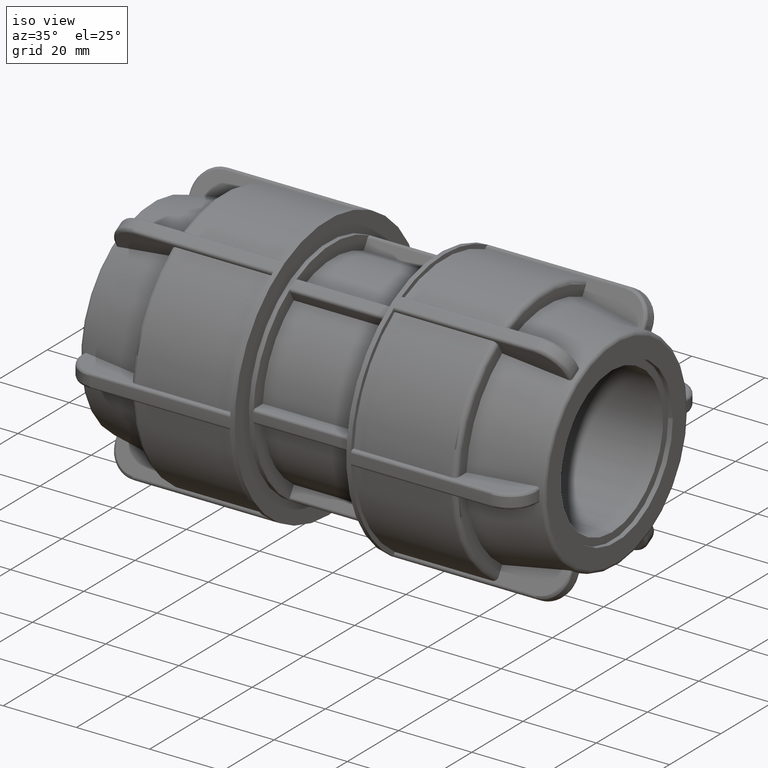
[diagram: clean part render]
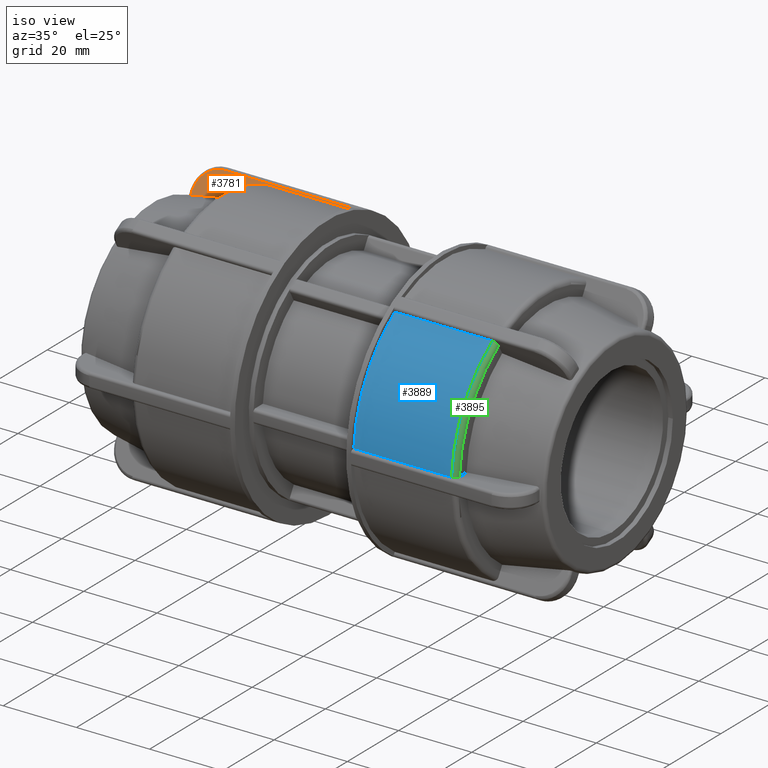
[diagram: same view with three faces highlighted in distinct colors, each labeled with its STEP entity id]
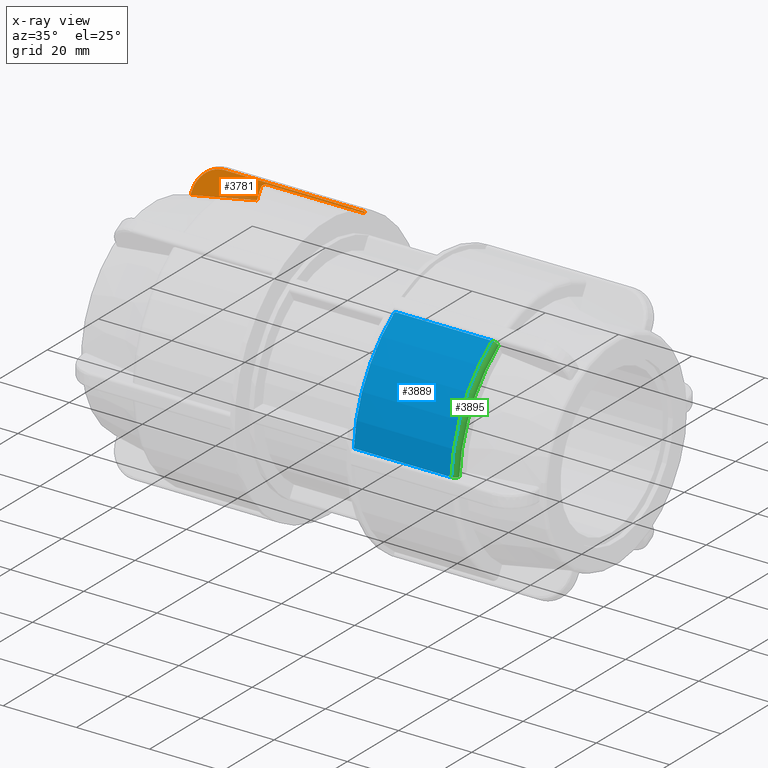
[diagram: x-ray of the same camera — body ghosted, the three highlighted faces saturated]
A machine part, iso view with three faces highlighted in distinct colors.
The next image is the same camera in x-ray (body ghosted, the three faces saturated) — at least one of them is partly hidden behind the body in this view.
Their STEP definitions:

[orange] entity #3781 — the highlighted planar face has unit normal (-0, 0.866, -0.5).
#48=(
BOUNDED_CURVE()
B_SPLINE_CURVE(2,(#6571,#6572,#6573),.UNSPECIFIED.,.F.,.F.)
B_SPLINE_CURVE_WITH_KNOTS((3,3),(0.,1.72756685067412),.UNSPECIFIED.)
CURVE()
GEOMETRIC_REPRESENTATION_ITEM()
RATIONAL_B_SPLINE_CURVE((1.,1.00133329924785,1.00011517547722))
REPRESENTATION_ITEM('')
);
#100=B_SPLINE_CURVE_WITH_KNOTS('',3,(#6542,#6543,#6544,#6545,#6546,#6547),
 .UNSPECIFIED.,.F.,.F.,(4,1,1,4),(0.,0.294967564577303,0.589935129154607,
1.03238647602056),.UNSPECIFIED.);
#102=B_SPLINE_CURVE_WITH_KNOTS('',3,(#6577,#6578,#6579,#6580,#6581,#6582,
#6583,#6584,#6585,#6586),.UNSPECIFIED.,.F.,.F.,(4,2,2,2,4),(0.,0.0470157208104112,
0.0940699030958911,0.14113297843627,0.188239151864905),.UNSPECIFIED.);
#247=PLANE('',#4111);
#395=FACE_OUTER_BOUND('',#637,.T.);
#637=EDGE_LOOP('',(#2876,#2877,#2878,#2879,#2880,#2881,#2882,#2883));
#905=LINE('',#6501,#1133);
#906=LINE('',#6563,#1134);
#908=LINE('',#6575,#1136);
#909=LINE('',#6588,#1137);
#910=LINE('',#6589,#1138);
#1133=VECTOR('',#4841,38.42);
#1134=VECTOR('',#4848,0.890342917536757);
#1136=VECTOR('',#4860,2.78117222986593);
#1137=VECTOR('',#4861,26.67);
#1138=VECTOR('',#4862,0.398981794479017);
#1660=VERTEX_POINT('',#6498);
#1661=VERTEX_POINT('',#6500);
#1663=VERTEX_POINT('',#6540);
#1665=VERTEX_POINT('',#6550);
#1666=VERTEX_POINT('',#6570);
#1667=VERTEX_POINT('',#6574);
#1668=VERTEX_POINT('',#6576);
#1669=VERTEX_POINT('',#6587);
#2114=EDGE_CURVE('',#1660,#1661,#905,.T.);
#2118=EDGE_CURVE('',#1663,#1660,#100,.T.);
#2120=EDGE_CURVE('',#1665,#1663,#906,.T.);
#2124=EDGE_CURVE('',#1666,#1665,#48,.T.);
#2125=EDGE_CURVE('',#1667,#1666,#908,.T.);
#2126=EDGE_CURVE('',#1668,#1667,#102,.T.);
#2127=EDGE_CURVE('',#1669,#1668,#909,.T.);
#2128=EDGE_CURVE('',#1661,#1669,#910,.T.);
#2876=ORIENTED_EDGE('',*,*,#2120,.F.);
#2877=ORIENTED_EDGE('',*,*,#2124,.F.);
#2878=ORIENTED_EDGE('',*,*,#2125,.F.);
#2879=ORIENTED_EDGE('',*,*,#2126,.F.);
#2880=ORIENTED_EDGE('',*,*,#2127,.F.);
#2881=ORIENTED_EDGE('',*,*,#2128,.F.);
#2882=ORIENTED_EDGE('',*,*,#2114,.F.);
#2883=ORIENTED_EDGE('',*,*,#2118,.F.);
#3781=ADVANCED_FACE('',(#395),#247,.F.);
#4111=AXIS2_PLACEMENT_3D('',#6569,#4858,#4859);
#4841=DIRECTION('',(1.,2.72792302586033E-16,1.77169144543045E-17));
#4848=DIRECTION('',(-1.74879981158523E-16,0.5,0.866025403784438));
#4858=DIRECTION('center_axis',(-2.27386606769204E-16,0.866025403784439,
-0.5));
#4859=DIRECTION('ref_axis',(1.77635683940025E-16,-0.5,-0.866025403784439));
#4860=DIRECTION('',(1.53080849893419E-16,-0.5,-0.866025403784438));
#4861=DIRECTION('',(-1.,-3.06161699786838E-16,0.));
#4862=DIRECTION('',(1.53080849893419E-16,-0.5,-0.866025403784438));
#6498=CARTESIAN_POINT('',(-54.93,16.1416729230923,31.9581976219547));
#6500=CARTESIAN_POINT('',(-16.51,16.1416729230923,31.9581976219547));
#6501=CARTESIAN_POINT('',(-15.875,16.1416729230923,31.9581976219547));
#6540=CARTESIAN_POINT('',(-61.5,12.8541335804059,26.2640124485403));
#6542=CARTESIAN_POINT('Ctrl Pts',(-61.5,12.8541335804059,26.2640124485403));
#6543=CARTESIAN_POINT('Ctrl Pts',(-61.5,13.3457461880347,27.1155104625949));
#6544=CARTESIAN_POINT('Ctrl Pts',(-61.0509256002354,14.3271913092124,28.8154232773151));
#6545=CARTESIAN_POINT('Ctrl Pts',(-58.8539227202472,15.7101240793371,31.210733098623));
#6546=CARTESIAN_POINT('Ctrl Pts',(-56.4048378228866,16.1416729230923,31.9581976219547));
#6547=CARTESIAN_POINT('Ctrl Pts',(-54.93,16.1416729230923,31.9581976219547));
#6550=CARTESIAN_POINT('',(-61.5,12.4089621216375,25.4929528638739));
#6563=CARTESIAN_POINT('',(-61.5,13.3573342211153,27.1355815246502));
#6569=CARTESIAN_POINT('Origin',(-15.24,16.490531336573,32.5624381187512));
#6570=CARTESIAN_POINT('',(-44.45,13.9155424476656,28.1024265342382));
#6571=CARTESIAN_POINT('Ctrl Pts',(-44.45,13.9155424476656,28.1024265342382));
#6572=CARTESIAN_POINT('Ctrl Pts',(-53.4061584660706,13.1243254531373,26.7319984999033));
#6573=CARTESIAN_POINT('Ctrl Pts',(-61.5000000000003,12.4089621216375,25.4929528638739));
#6574=CARTESIAN_POINT('',(-44.45,15.3061285625986,30.5109923376019));
#6575=CARTESIAN_POINT('',(-44.45,11.2991188873141,23.5706479935892));
#6576=CARTESIAN_POINT('',(-43.18,15.9421820258528,31.6126692522883));
#6577=CARTESIAN_POINT('Ctrl Pts',(-43.18,15.9421820258528,31.6126692522883));
#6578=CARTESIAN_POINT('Ctrl Pts',(-43.3367190693681,15.9421820258528,31.6126692522883));
#6579=CARTESIAN_POINT('Ctrl Pts',(-43.5211571746938,15.9238092650572,31.5808466971152));
#6580=CARTESIAN_POINT('Ctrl Pts',(-43.8107957448815,15.863739824966,31.4768033748949));
#6581=CARTESIAN_POINT('Ctrl Pts',(-43.9672083916521,15.8113933325832,31.38613659049));
#6582=CARTESIAN_POINT('Ctrl Pts',(-44.1888637765794,15.7003845952775,31.1938638173924));
#6583=CARTESIAN_POINT('Ctrl Pts',(-44.2933233619041,15.6220789058263,31.0582343847412));
#6584=CARTESIAN_POINT('Ctrl Pts',(-44.4133007276922,15.4770469527705,30.8070316733275));
#6585=CARTESIAN_POINT('Ctrl Pts',(-44.45,15.3846388516463,30.6469761471495));
#6586=CARTESIAN_POINT('Ctrl Pts',(-44.45,15.3061285625986,30.5109923376019));
#6587=CARTESIAN_POINT('',(-16.51,15.9421820258528,31.6126692522883));
#6588=CARTESIAN_POINT('',(-30.48,15.9421820258528,31.6126692522883));
#6589=CARTESIAN_POINT('',(-16.51,11.8048652645021,24.4466264146226));

[blue] entity #3889 — the highlighted cylindrical surface (partial cylindrical patch) has radius 35.405 mm, axis along (1, 0, 0).
#503=FACE_OUTER_BOUND('',#755,.T.);
#755=EDGE_LOOP('',(#3440,#3441,#3442,#3443));
#981=LINE('',#7607,#1209);
#999=LINE('',#7848,#1227);
#1209=VECTOR('',#5243,26.67);
#1227=VECTOR('',#5297,26.67);
#1449=CIRCLE('',#4296,35.405);
#1456=CIRCLE('',#4309,35.405);
#1795=VERTEX_POINT('',#7604);
#1796=VERTEX_POINT('',#7606);
#1825=VERTEX_POINT('',#7836);
#1826=VERTEX_POINT('',#7847);
#2329=EDGE_CURVE('',#1796,#1795,#981,.T.);
#2371=EDGE_CURVE('',#1826,#1825,#999,.T.);
#2388=EDGE_CURVE('',#1795,#1826,#1449,.T.);
#2397=EDGE_CURVE('',#1796,#1825,#1456,.T.);
#3440=ORIENTED_EDGE('',*,*,#2371,.T.);
#3441=ORIENTED_EDGE('',*,*,#2397,.F.);
#3442=ORIENTED_EDGE('',*,*,#2329,.T.);
#3443=ORIENTED_EDGE('',*,*,#2388,.T.);
#3681=CYLINDRICAL_SURFACE('',#4308,35.405);
#3889=ADVANCED_FACE('',(#503),#3681,.T.);
#4296=AXIS2_PLACEMENT_3D('',#7905,#5328,#5329);
#4308=AXIS2_PLACEMENT_3D('',#7922,#5354,#5355);
#4309=AXIS2_PLACEMENT_3D('',#7923,#5356,#5357);
#5243=DIRECTION('',(-1.,-3.06161699786838E-16,0.));
#5297=DIRECTION('',(1.,3.06161699786838E-16,0.));
#5328=DIRECTION('center_axis',(1.,3.06161699786838E-16,0.));
#5329=DIRECTION('ref_axis',(0.,0.,-1.));
#5354=DIRECTION('center_axis',(1.,3.06161699786838E-16,0.));
#5355=DIRECTION('ref_axis',(-3.49759962317046E-16,1.,0.));
#5356=DIRECTION('center_axis',(1.,3.06161699786838E-16,0.));
#5357=DIRECTION('ref_axis',(3.05738581841414E-16,-1.,1.83697019872103E-16));
#7604=CARTESIAN_POINT('',(16.51,-19.4062836409905,29.6126692522883));
#7606=CARTESIAN_POINT('',(43.18,-19.4062836409905,29.6126692522884));
#7607=CARTESIAN_POINT('',(30.48,-19.4062836409905,29.6126692522883));
#7836=CARTESIAN_POINT('',(43.18,-35.3484656668433,2.00000000000001));
#7847=CARTESIAN_POINT('',(16.51,-35.3484656668433,2.00000000000001));
#7848=CARTESIAN_POINT('',(30.48,-35.3484656668433,2.00000000000001));
#7905=CARTESIAN_POINT('Origin',(16.51,5.0547296634807E-15,0.));
#7922=CARTESIAN_POINT('Origin',(30.48,9.33180860950283E-15,0.));
#7923=CARTESIAN_POINT('Origin',(43.18,1.32200621967957E-14,0.));

[green] entity #3895 — the highlighted toroidal blend (fillet) surface has major radius 34.135 mm and minor (blend) radius 1.27 mm.
#37=TOROIDAL_SURFACE('',#4320,34.135,1.27);
#142=B_SPLINE_CURVE_WITH_KNOTS('',3,(#7609,#7610,#7611,#7612,#7613,#7614,
#7615,#7616,#7617,#7618),.UNSPECIFIED.,.F.,.F.,(4,2,2,2,4),(-0.188239151094503,
-0.141113232694733,-0.0940304570825018,-0.0469960190171783,0.),
 .UNSPECIFIED.);
#152=B_SPLINE_CURVE_WITH_KNOTS('',3,(#7837,#7838,#7839,#7840,#7841,#7842,
#7843,#7844,#7845,#7846),.UNSPECIFIED.,.F.,.F.,(4,2,2,2,4),(0.,0.0469960190171781,
0.0940304570825019,0.141113232694733,0.188239151094504),.UNSPECIFIED.);
#509=FACE_OUTER_BOUND('',#761,.T.);
#761=EDGE_LOOP('',(#3464,#3465,#3466,#3467));
#1456=CIRCLE('',#4309,35.405);
#1462=CIRCLE('',#4321,34.135);
#1796=VERTEX_POINT('',#7606);
#1797=VERTEX_POINT('',#7608);
#1824=VERTEX_POINT('',#7834);
#1825=VERTEX_POINT('',#7836);
#2330=EDGE_CURVE('',#1797,#1796,#142,.T.);
#2370=EDGE_CURVE('',#1825,#1824,#152,.T.);
#2397=EDGE_CURVE('',#1796,#1825,#1456,.T.);
#2405=EDGE_CURVE('',#1824,#1797,#1462,.T.);
#3464=ORIENTED_EDGE('',*,*,#2370,.T.);
#3465=ORIENTED_EDGE('',*,*,#2405,.T.);
#3466=ORIENTED_EDGE('',*,*,#2330,.T.);
#3467=ORIENTED_EDGE('',*,*,#2397,.T.);
#3895=ADVANCED_FACE('',(#509),#37,.T.);
#4309=AXIS2_PLACEMENT_3D('',#7923,#5356,#5357);
#4320=AXIS2_PLACEMENT_3D('',#7947,#5379,#5380);
#4321=AXIS2_PLACEMENT_3D('',#7948,#5381,#5382);
#5356=DIRECTION('center_axis',(1.,3.06161699786838E-16,0.));
#5357=DIRECTION('ref_axis',(3.05738581841414E-16,-1.,1.83697019872103E-16));
#5379=DIRECTION('center_axis',(1.,3.06161699786838E-16,0.));
#5380=DIRECTION('ref_axis',(0.,0.,-1.));
#5381=DIRECTION('center_axis',(-1.,-3.06161699786838E-16,0.));
#5382=DIRECTION('ref_axis',(3.06161699786838E-16,-1.,1.83697019872103E-16));
#7606=CARTESIAN_POINT('',(43.18,-19.4062836409905,29.6126692522884));
#7608=CARTESIAN_POINT('',(44.45,-18.7702301777363,28.5109923376019));
#7609=CARTESIAN_POINT('Ctrl Pts',(44.45,-18.7702301777363,28.5109923376019));
#7610=CARTESIAN_POINT('Ctrl Pts',(44.45,-18.8487733750693,28.6470331459715));
#7611=CARTESIAN_POINT('Ctrl Pts',(44.4132703253075,-18.9412187183232,28.8071531774104));
#7612=CARTESIAN_POINT('Ctrl Pts',(44.2931955099687,-19.0863016592796,29.0584442024585));
#7613=CARTESIAN_POINT('Ctrl Pts',(44.1886539862116,-19.1646273797681,29.194108329884));
#7614=CARTESIAN_POINT('Ctrl Pts',(43.9669264528178,-19.2755999864303,29.3863185228714));
#7615=CARTESIAN_POINT('Ctrl Pts',(43.8105538748911,-19.3279054132485,29.4769141796319));
#7616=CARTESIAN_POINT('Ctrl Pts',(43.5210172064283,-19.3879260912717,29.5808730434729));
#7617=CARTESIAN_POINT('Ctrl Pts',(43.3366533967239,-19.4062836409905,29.6126692522883));
#7618=CARTESIAN_POINT('Ctrl Pts',(43.18,-19.4062836409905,29.6126692522883));
#7834=CARTESIAN_POINT('',(44.45,-34.0763587403349,2.00000000000001));
#7836=CARTESIAN_POINT('',(43.18,-35.3484656668433,2.00000000000001));
#7837=CARTESIAN_POINT('Ctrl Pts',(43.18,-35.3484656668433,2.00000000000001));
#7838=CARTESIAN_POINT('Ctrl Pts',(43.3366533967239,-35.3484656668433,2.00000000000001));
#7839=CARTESIAN_POINT('Ctrl Pts',(43.5210172064283,-35.3117505674057,2.00000000000001));
#7840=CARTESIAN_POINT('Ctrl Pts',(43.8105538748911,-35.1917092113592,2.00000000000001));
#7841=CARTESIAN_POINT('Ctrl Pts',(43.9669264528178,-35.087098357723,2.00000000000001));
#7842=CARTESIAN_POINT('Ctrl Pts',(44.1886539862116,-34.8651531443985,2.00000000000001));
#7843=CARTESIAN_POINT('Ctrl Pts',(44.2931955099687,-34.7085017034215,2.00000000000001));
#7844=CARTESIAN_POINT('Ctrl Pts',(44.4132703253076,-34.4183358215086,2.00000000000001));
#7845=CARTESIAN_POINT('Ctrl Pts',(44.45,-34.2334451350008,2.00000000000001));
#7846=CARTESIAN_POINT('Ctrl Pts',(44.45,-34.0763587403349,2.00000000000001));
#7923=CARTESIAN_POINT('Origin',(43.18,1.32200621967957E-14,0.));
#7947=CARTESIAN_POINT('Origin',(43.18,1.32200621967957E-14,0.));
#7948=CARTESIAN_POINT('Origin',(44.45,1.3608887555525E-14,0.));